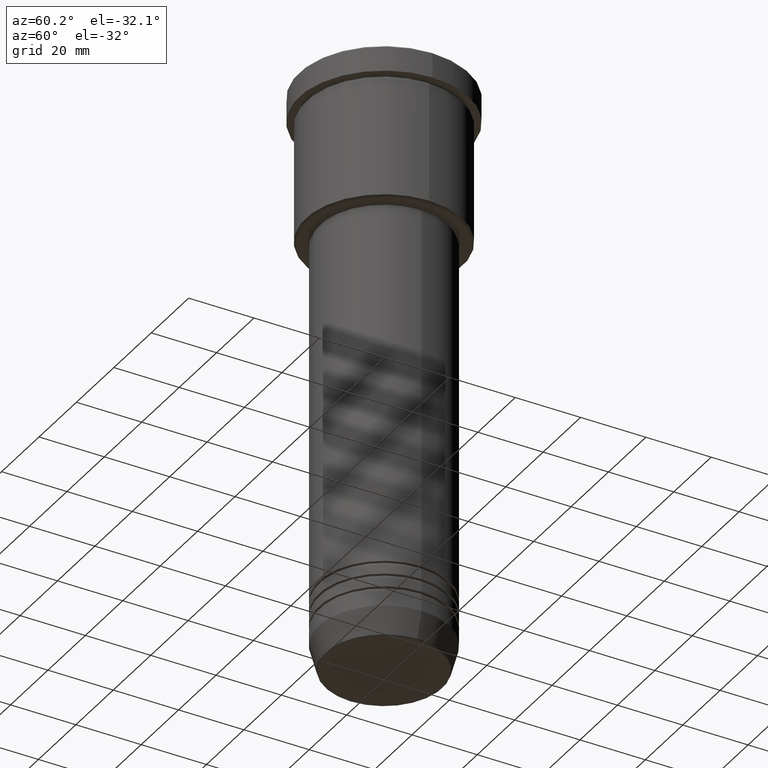
[diagram: clean part render]
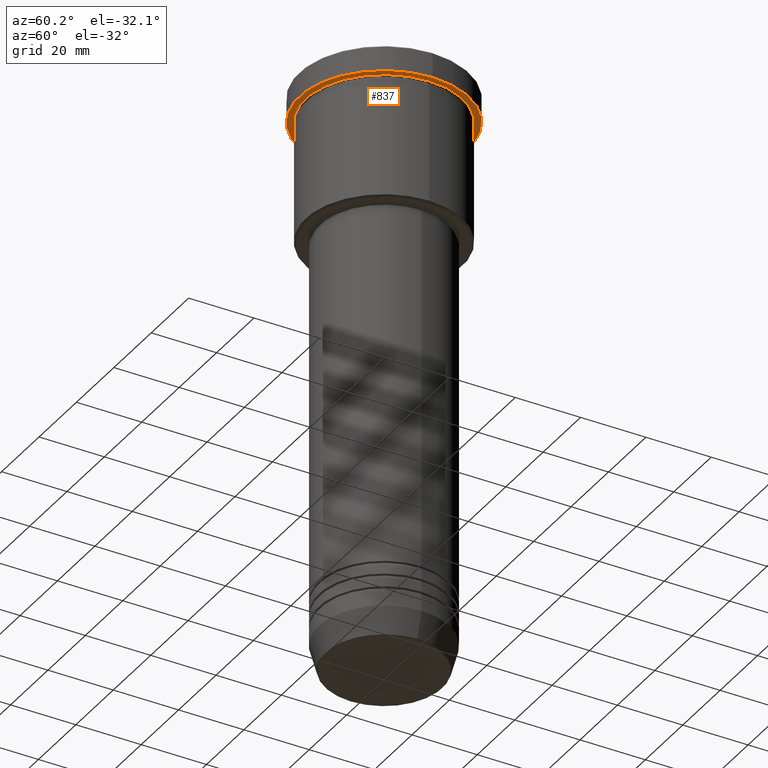
[diagram: same view with one face highlighted and labeled with its STEP entity id]
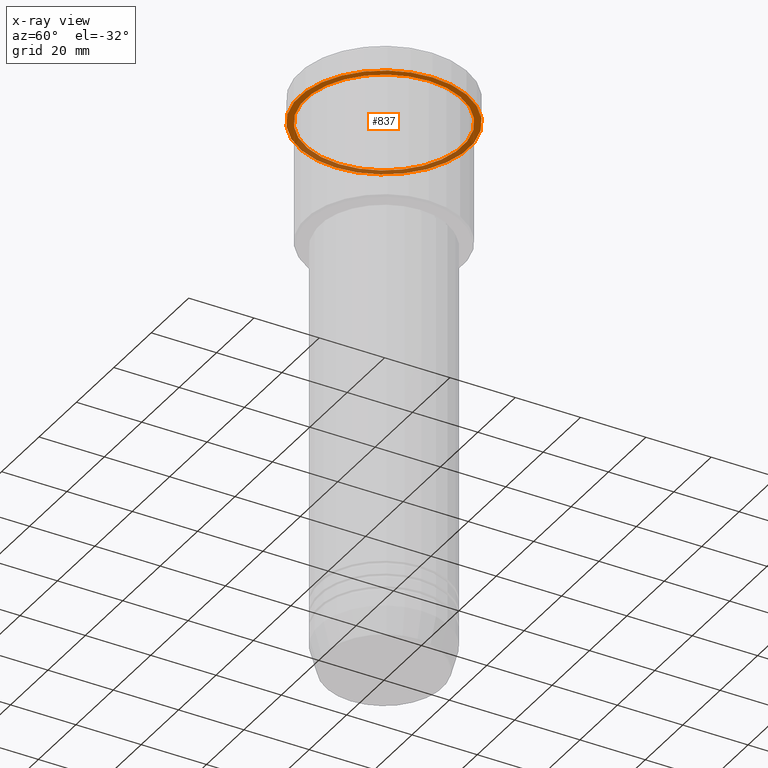
[diagram: x-ray of the same camera — body ghosted, the highlighted face saturated]
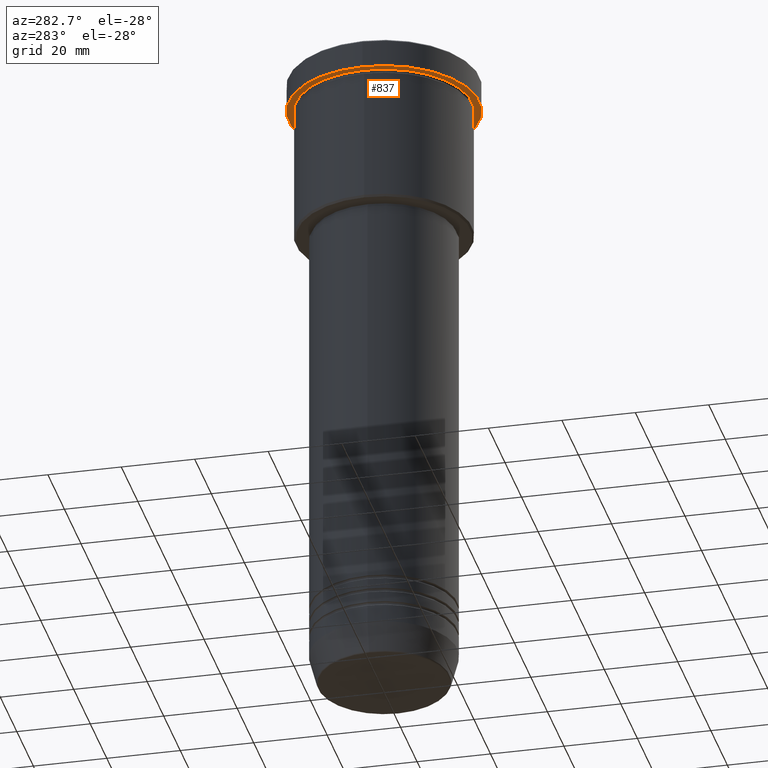
[diagram: same view with one face highlighted and labeled with its STEP entity id]
A machine part, auxiliary view. The second image highlights one B-rep face of the part: STEP entity #837.
The next image is the same camera in x-ray: the body ghosted, the highlighted face saturated — about 38% of this face is hidden behind the body in this view.
A second angle (auxiliary view) of the same face is appended — the face is thin or edge-on in the first view.
In plain terms, the highlighted planar face has unit normal (0, 0, -1).
Its self-contained STEP definition (entity closure, byte-faithful):
#4 = VERTEX_POINT ( 'NONE', #314 ) ;
#32 = AXIS2_PLACEMENT_3D ( 'NONE', #761, #399, #586 ) ;
#98 = VERTEX_POINT ( 'NONE', #980 ) ;
#169 = CARTESIAN_POINT ( 'NONE',  ( 0.000000000000000000, 0.000000000000000000, -7.999999999999992895 ) ) ;
#201 = DIRECTION ( 'NONE',  ( 1.000000000000000000, 0.000000000000000000, 0.000000000000000000 ) ) ;
#226 = CARTESIAN_POINT ( 'NONE',  ( 0.000000000000000000, 0.000000000000000000, -7.999999999999992895 ) ) ;
#281 = ORIENTED_EDGE ( 'NONE', *, *, #977, .F. ) ;
#314 = CARTESIAN_POINT ( 'NONE',  ( -26.00000000000000000, 3.184081677783118191E-15, -7.999999999999992895 ) ) ;
#317 = DIRECTION ( 'NONE',  ( -1.000000000000000000, 0.000000000000000000, 0.000000000000000000 ) ) ;
#320 = VERTEX_POINT ( 'NONE', #959 ) ;
#332 = VERTEX_POINT ( 'NONE', #1147 ) ;
#338 = AXIS2_PLACEMENT_3D ( 'NONE', #226, #396, #317 ) ;
#373 = EDGE_LOOP ( 'NONE', ( #975, #281 ) ) ;
#375 = AXIS2_PLACEMENT_3D ( 'NONE', #992, #819, #1168 ) ;
#396 = DIRECTION ( 'NONE',  ( -0.000000000000000000, -0.000000000000000000, 1.000000000000000000 ) ) ;
#399 = DIRECTION ( 'NONE',  ( -0.000000000000000000, -0.000000000000000000, 1.000000000000000000 ) ) ;
#429 = AXIS2_PLACEMENT_3D ( 'NONE', #1044, #1141, #708 ) ;
#519 = EDGE_CURVE ( 'NONE', #332, #98, #808, .T. ) ;
#549 = ORIENTED_EDGE ( 'NONE', *, *, #519, .T. ) ;
#555 = CIRCLE ( 'NONE', #32, 26.00000000000000000 ) ;
#586 = DIRECTION ( 'NONE',  ( 1.000000000000000000, 0.000000000000000000, 0.000000000000000000 ) ) ;
#684 = PLANE ( 'NONE',  #429 ) ;
#708 = DIRECTION ( 'NONE',  ( -1.000000000000000000, 0.000000000000000000, -0.000000000000000000 ) ) ;
#709 = EDGE_CURVE ( 'NONE', #98, #332, #1157, .T. ) ;
#732 = EDGE_CURVE ( 'NONE', #320, #4, #555, .T. ) ;
#761 = CARTESIAN_POINT ( 'NONE',  ( 0.000000000000000000, 0.000000000000000000, -7.999999999999992895 ) ) ;
#767 = CIRCLE ( 'NONE', #1071, 26.00000000000000000 ) ;
#799 = DIRECTION ( 'NONE',  ( -0.000000000000000000, -0.000000000000000000, 1.000000000000000000 ) ) ;
#808 = CIRCLE ( 'NONE', #338, 24.00000000000000000 ) ;
#819 = DIRECTION ( 'NONE',  ( -0.000000000000000000, -0.000000000000000000, 1.000000000000000000 ) ) ;
#837 = ADVANCED_FACE ( 'NONE', ( #851, #1123 ), #684, .T. ) ;
#851 = FACE_BOUND ( 'NONE', #856, .T. ) ;
#856 = EDGE_LOOP ( 'NONE', ( #1000, #549 ) ) ;
#959 = CARTESIAN_POINT ( 'NONE',  ( 26.00000000000000000, 0.000000000000000000, -7.999999999999992895 ) ) ;
#975 = ORIENTED_EDGE ( 'NONE', *, *, #732, .F. ) ;
#977 = EDGE_CURVE ( 'NONE', #4, #320, #767, .T. ) ;
#980 = CARTESIAN_POINT ( 'NONE',  ( -24.00000000000000000, 0.000000000000000000, -7.999999999999992895 ) ) ;
#992 = CARTESIAN_POINT ( 'NONE',  ( 0.000000000000000000, 0.000000000000000000, -7.999999999999992895 ) ) ;
#1000 = ORIENTED_EDGE ( 'NONE', *, *, #709, .T. ) ;
#1044 = CARTESIAN_POINT ( 'NONE',  ( 0.000000000000000000, 26.00000000000000000, -7.999999999999992895 ) ) ;
#1071 = AXIS2_PLACEMENT_3D ( 'NONE', #169, #799, #201 ) ;
#1123 = FACE_OUTER_BOUND ( 'NONE', #373, .T. ) ;
#1141 = DIRECTION ( 'NONE',  ( 0.000000000000000000, 0.000000000000000000, -1.000000000000000000 ) ) ;
#1147 = CARTESIAN_POINT ( 'NONE',  ( 24.00000000000000000, 2.939152317953647894E-15, -7.999999999999992895 ) ) ;
#1157 = CIRCLE ( 'NONE', #375, 24.00000000000000000 ) ;
#1168 = DIRECTION ( 'NONE',  ( -1.000000000000000000, 0.000000000000000000, 0.000000000000000000 ) ) ;